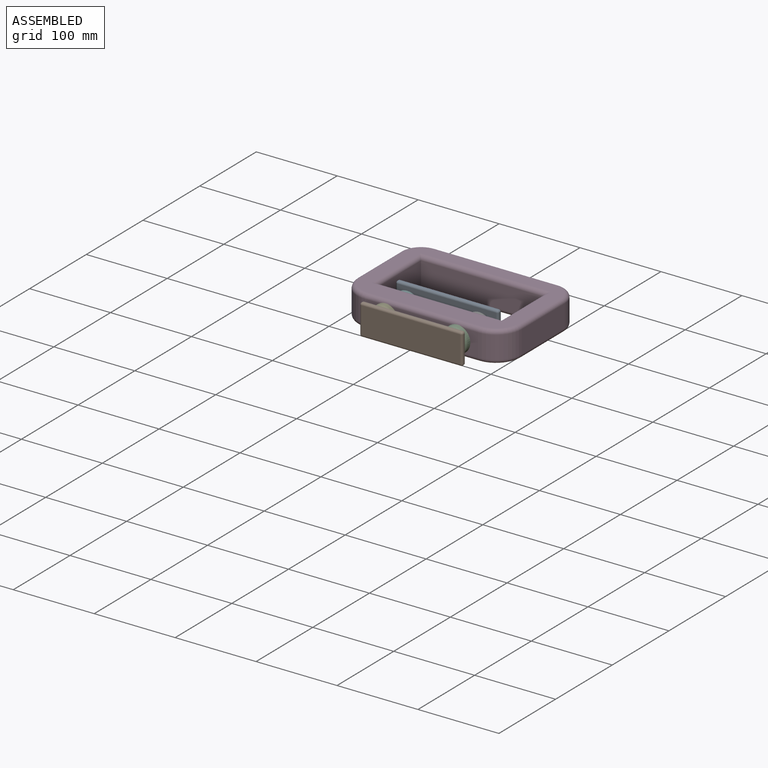
[diagram: assembled view]
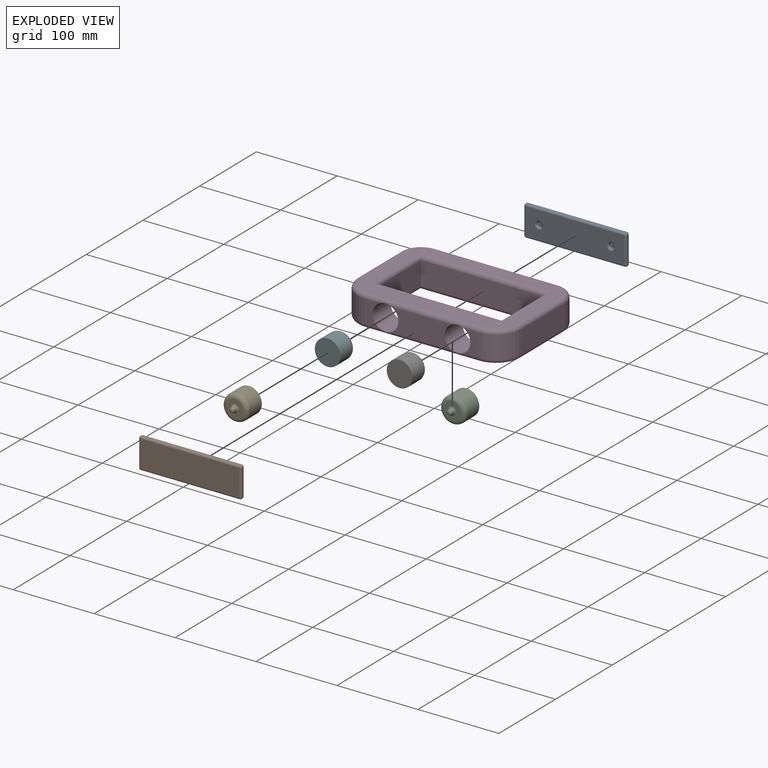
[diagram: exploded view]
GUIDED TOUR — MATED ASSEMBLY (Onshape document bc9c2df573b4881ff6e72597, AutoMate assembly bc9c2df573b4881ff6e72597_b0137a66a25a25fc5a26b31e_0d017a39933ade05e7fb4872_default)

This assembly has 7 components, labeled P0..P6 below (a component is one placed occurrence of a part; the same part can appear more than once), held together by 6 mates. A mate is a constraint between two components; its type names the relative motion it leaves free:
  FASTENED — locks the two components together rigidly (no relative motion).
Axis/direction vectors are unit vectors and 'through' points are millimeter coordinates, both in the assembly's world frame.

MATES
  1. FASTENED "Fastened 4": P5 <-> P4, direction (0.000, -1.000, 0.000) through (-46.03, -4.26, -5.03) mm
  2. FASTENED "Fastened 2": P2 <-> P3, direction (0.000, 1.000, 0.000) through (42.87, -4.26, -5.03) mm
  3. FASTENED "Fastened 6": P0 <-> P5, direction (0.000, -1.000, 0.000) through (-46.03, 27.49, -5.03) mm
  4. FASTENED "Fastened 5": P6 <-> P2, direction (0.000, -1.000, 0.000) through (42.87, -4.26, -5.03) mm
  5. FASTENED "Fastened 3": P1 <-> P2, direction (0.000, -1.000, 0.000) through (42.87, -35.27, -5.03) mm
  6. FASTENED "Fastened 1": P4 <-> P3, direction (0.000, 1.000, 0.000) through (-46.03, -4.26, -5.03) mm

ASSEMBLY ORDER
  1. P3 — the base component [order heuristic]
  2. P6 — core [order heuristic]
  3. P5 — core [order heuristic]
  4. P0 — core [order heuristic]
  5. P4 [order verified]
  6. P2 [order verified]
  7. P1 [order verified]
(P1 verified with a relaxed clearance tolerance: the source model stores slight part interference there.)
Order-tag legend:
  [order verified] — this step's position reverses a verified removal order: the component was checked to insert without passing through the ones already placed.
  [order heuristic] — the first 4 components form the assembly's core: parts whose collision-free extraction could not be verified, listed in mate-graph order.

Of the 7 components, 1 carries the full construction recipe — the FeatureScript program that regenerates the part's solid from scratch; the rest are supplied as boundary geometry only.
Each toured component is shown spotlighted twice — in the assembled view, then in the exploded view, where a leader line traces a displaced component back to its assembled socket (saturated green if recipe-attached, orange if geometry-only; every other component desaturated gray) — followed by its recipe or geometry summary and the mates that hold it.
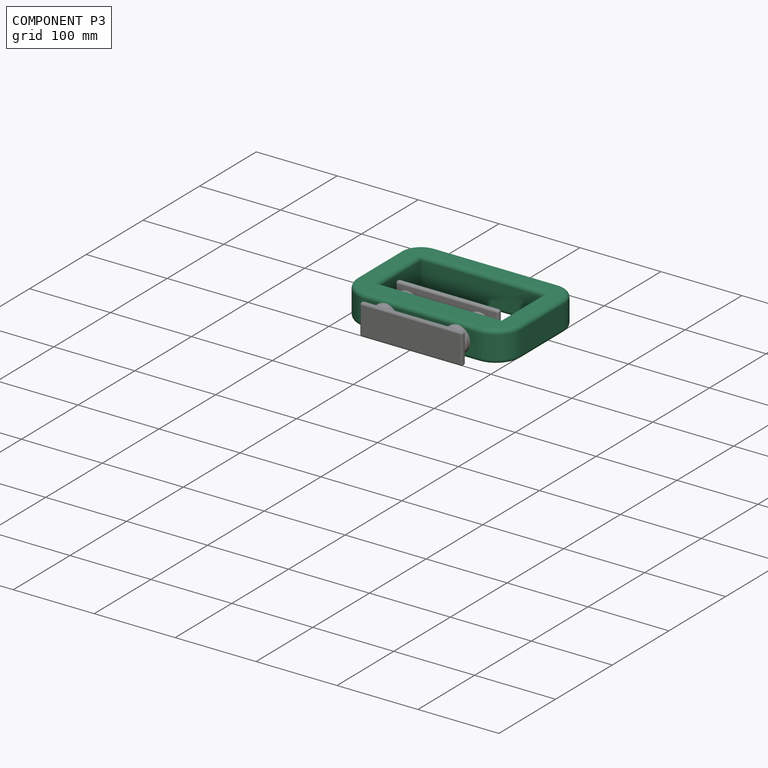
[diagram: component P3 — assembled]
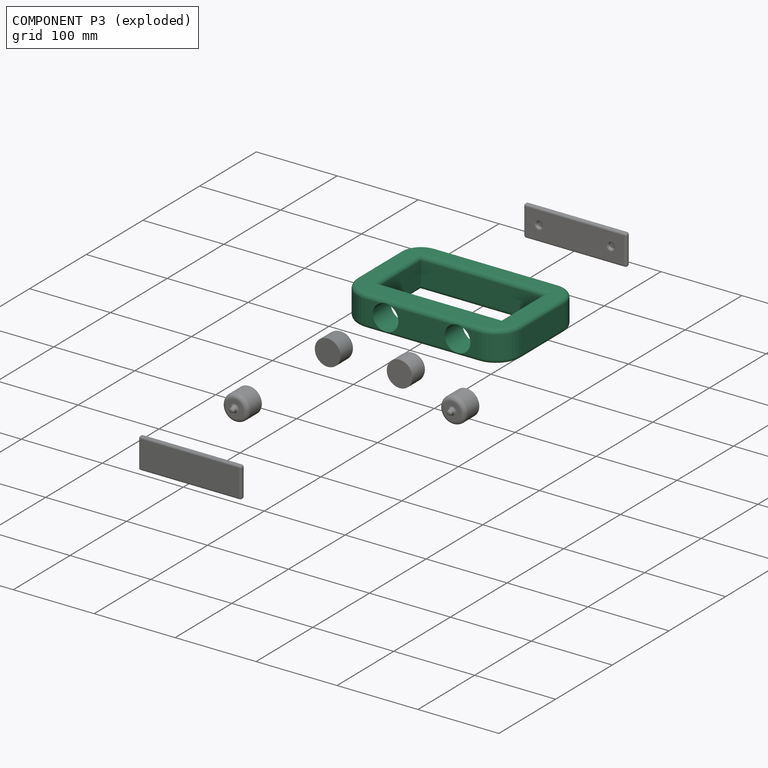
[diagram: component P3 — exploded]
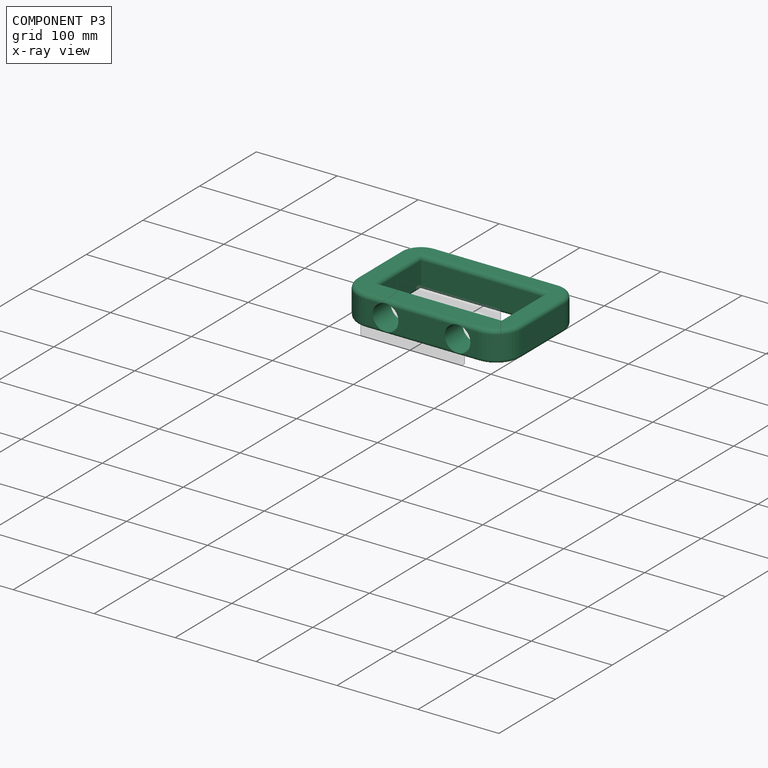
[diagram: component P3 — x-ray view]
COMPONENT P3 — recipe-attached (CADFS 00538621, mesh-verified: the recipe's output STEP matches this component's geometry to below the mesh-comparison resolution (tessellation chordal tolerance ~0.369 mm)).
Held by: FASTENED mate "Fastened 2" to P2; FASTENED mate "Fastened 1" to P4.
Construction recipe (FeatureScript — the CAD program that rebuilds this solid; sketch coordinates are in the units given by the * unit suffixes, e.g. mm):

FeatureScript 1511;
import(path : "onshape/std/geometry.fs", version : "1511.0");
import(path : "onshape/std/common.fs", version : "1511.0");
const mm = millimeter;
const VERTEX = EntityType.VERTEX;
const EDGE = EntityType.EDGE;
const FACE = EntityType.FACE;
const BODY = EntityType.BODY;
function v(x, y){return vector(x, y);}
function OD(order){return orderDisambiguation(order);}
function OSD(set){return originalSetDisambiguation(set);}
function TD(topology){return topologyDisambiguation(topology);}
function TDD(query){return trueDependencyDisambiguation(query);}
function sQuery(a, b, c) {return sketchEntityQuery(a, b, c);}

annotation { "Feature Type Name" : "Feature", "Feature Type Description" : "" }
export const myFeature = defineFeature(function(context is Context, id is Id, definition is map)
    precondition{}
    {
        {
            var Q0;
            Q0=qCreatedBy(makeId("Front.planeOp"),FACE);
            var sketch = newSketch(context, id + "F0", { "sketchPlane" : qUnion([Q0])});
            skLineSegment(sketch, "E0.bottom", {"start": v(69.85, -19.05) * mm, "end": v(-69.85, -19.05) * mm});
            skLineSegment(sketch, "E0.top", {"start": v(69.85, 19.05) * mm, "end": v(-69.85, 19.05) * mm});
            skLineSegment(sketch, "E0.left", {"start": v(69.85, -19.05) * mm, "end": v(69.85, 19.05) * mm});
            skLineSegment(sketch, "E0.right", {"start": v(-69.85, -19.05) * mm, "end": v(-69.85, 19.05) * mm});
            skPoint(sketch, "E0.middle", {"position": v(0, 0) * mm});
            skCircle(sketch, "E1", {"center": v(-44.45, 0) * mm, "radius": 15.88 * mm});
            skCircle(sketch, "E2", {"center": v(44.45, 0) * mm, "radius": 15.88 * mm});
            skLineSegment(sketch, "E3", {"start": v(-44.45, 0) * mm, "end": v(0, 0) * mm, "construction": true});
            skLineSegment(sketch, "E4", {"start": v(0, 0) * mm, "end": v(44.45, 0) * mm, "construction": true});
            skSolve(sketch);
        }
        {
            var Q0;
            Q0=makeQuery(id+"F0.imprint","IMPRINT",FACE,{"disambiguationData":[TD([[makeQuery(id+"F0.imprint","IMPRINT",EDGE,{"derivedFrom":sQuery(id+"F0.wireOp",EDGE,"E0.bottom")}),-1.0]])]});
            extrude(context, id + "F1", {"entities" : qUnion([Q0]), "endBound" : BoundingType.SYMMETRIC, "depth" : 31.75 * mm, "offsetDistance" : 25.4 * mm});
        }
        {
            var Q0;
            Q0=makeQuery(id+"F1.opExtrude","SWEPT_FACE",FACE,{"disambiguationData":[OSD([sQuery(id+"F0.wireOp",EDGE,"E0.right")])]});
            var sketch = newSketch(context, id + "F2", { "sketchPlane" : qUnion([Q0])});
            skLineSegment(sketch, "E5.bottom", {"start": v(15.88, -19.05) * mm, "end": v(-15.88, -19.05) * mm});
            skLineSegment(sketch, "E5.top", {"start": v(15.88, 19.05) * mm, "end": v(-15.88, 19.05) * mm});
            skLineSegment(sketch, "E5.left", {"start": v(15.88, -19.05) * mm, "end": v(15.88, 19.05) * mm});
            skLineSegment(sketch, "E5.right", {"start": v(-15.88, -19.05) * mm, "end": v(-15.88, 19.05) * mm});
            skPoint(sketch, "E5.middle", {"position": v(0, 0) * mm});
            skSolve(sketch);
        }
        {
            var Q0;
            Q0=makeQuery(id+"F2.imprint","IMPRINT",FACE,{"disambiguationData":[TD([[makeQuery(id+"F2.imprint","IMPRINT",EDGE,{"derivedFrom":sQuery(id+"F2.wireOp",EDGE,"E5.bottom")}),-1.0]])]});
            var Q1;
            Q1=sQuery(id+"F2.wireOp",EDGE,"E5.right");
            revolve(context, id + "F3", {"operationType" : NewBodyOperationType.ADD, "entities" : qUnion([Q0]), "axis" : qUnion([Q1]), "revolveType" : RevolveType.ONE_DIRECTION, "oppositeDirection" : true, "angle" : 90 * degree});
        }
        {
            var Q0;
            Q0=makeQuery(id+"F3.boolean.opBoolean","MERGE",FACE,{"derivedFrom":[makeQuery(id+"F1.opExtrude","CAP_FACE",FACE,{"disambiguationData":[OSD([sQuery(id+"F0.wireOp",EDGE,"E0.bottom"),sQuery(id+"F0.wireOp",EDGE,"E0.top"),sQuery(id+"F0.wireOp",EDGE,"E0.left"),sQuery(id+"F0.wireOp",EDGE,"E0.right"),sQuery(id+"F0.wireOp",EDGE,"E1"),sQuery(id+"F0.wireOp",EDGE,"E2")])],"isStart":true}),makeQuery(id+"F3.opRevolve","CAP_FACE",FACE,{"disambiguationData":[OSD([sQuery(id+"F2.wireOp",EDGE,"E5.bottom"),sQuery(id+"F2.wireOp",EDGE,"E5.top"),sQuery(id+"F2.wireOp",EDGE,"E5.left"),sQuery(id+"F2.wireOp",EDGE,"E5.right")])],"isStart":false})]});
            var sketch = newSketch(context, id + "F4", { "sketchPlane" : qUnion([Q0])});
            skLineSegment(sketch, "E6.bottom", {"start": v(101.6, 19.05) * mm, "end": v(76.2, 19.05) * mm});
            skLineSegment(sketch, "E6.top", {"start": v(101.6, -19.05) * mm, "end": v(76.2, -19.05) * mm});
            skLineSegment(sketch, "E6.left", {"start": v(101.6, 19.05) * mm, "end": v(101.6, -19.05) * mm});
            skLineSegment(sketch, "E6.right", {"start": v(76.2, 19.05) * mm, "end": v(76.2, -19.05) * mm});
            skSolve(sketch);
        }
        {
            var Q0;
            Q0=makeQuery(id+"F4.imprint","IMPRINT",FACE,{"disambiguationData":[TD([[makeQuery(id+"F4.imprint","IMPRINT",EDGE,{"derivedFrom":sQuery(id+"F4.wireOp",EDGE,"E6.bottom")}),-1.0]])]});
            extrude(context, id + "F5", {"entities" : qUnion([Q0]), "operationType" : NewBodyOperationType.ADD, "depth" : 76.2 * mm, "offsetDistance" : 25.4 * mm});
        }
        {
            var Q0;
            Q0=makeQuery(id+"F5.opExtrude","CAP_FACE",FACE,{"disambiguationData":[OSD([sQuery(id+"F4.wireOp",EDGE,"E6.bottom"),sQuery(id+"F4.wireOp",EDGE,"E6.top"),sQuery(id+"F4.wireOp",EDGE,"E6.left"),sQuery(id+"F4.wireOp",EDGE,"E6.right")])],"isStart":false});
            var Q1;
            Q1=makeQuery(id+"F5.opExtrude","CAP_EDGE",EDGE,{"disambiguationData":[OSD([sQuery(id+"F4.wireOp",EDGE,"E6.right")])],"isStart":false});
            revolve(context, id + "F6", {"operationType" : NewBodyOperationType.ADD, "entities" : qUnion([Q0]), "axis" : qUnion([Q1]), "revolveType" : RevolveType.ONE_DIRECTION, "angle" : 90 * degree});
        }
        {
            var Q0;
            {var subQ0=sQuery(id+"F4.wireOp",EDGE,"E6.right");Q0=makeQuery(id+"F6.boolean.opBoolean","MERGE",FACE,{"derivedFrom":[makeQuery(id+"F5.opExtrude","SWEPT_FACE",FACE,{"disambiguationData":[OSD([subQ0])]}),makeQuery(id+"F6.opRevolve","CAP_FACE",FACE,{"disambiguationData":[OSD([sQuery(id+"F4.wireOp",EDGE,"E6.bottom"),sQuery(id+"F4.wireOp",EDGE,"E6.top"),sQuery(id+"F4.wireOp",EDGE,"E6.left"),subQ0])],"isStart":false})]});}
            var sketch = newSketch(context, id + "F7", { "sketchPlane" : qUnion([Q0])});
            skLineSegment(sketch, "E7.bottom", {"start": v(117.47, 19.05) * mm, "end": v(92.07, 19.05) * mm});
            skLineSegment(sketch, "E7.top", {"start": v(117.47, -19.05) * mm, "end": v(92.07, -19.05) * mm});
            skLineSegment(sketch, "E7.left", {"start": v(117.47, 19.05) * mm, "end": v(117.47, -19.05) * mm});
            skLineSegment(sketch, "E7.right", {"start": v(92.07, 19.05) * mm, "end": v(92.07, -19.05) * mm});
            skSolve(sketch);
        }
        {
            var Q0;
            Q0=makeQuery(id+"F7.imprint","IMPRINT",FACE,{"disambiguationData":[TD([[makeQuery(id+"F7.imprint","IMPRINT",EDGE,{"derivedFrom":sQuery(id+"F7.wireOp",EDGE,"E7.bottom")}),1.0]])]});
            var Q1;
            Q1=qCreatedBy(makeId("Right.planeOp"),FACE);
            extrude(context, id + "F8", {"entities" : qUnion([Q0]), "operationType" : NewBodyOperationType.ADD, "endBound" : BoundingType.UP_TO_SURFACE, "depth" : 25.4 * mm, "endBoundEntityFace" : qUnion([Q1]), "offsetDistance" : 25.4 * mm});
        }
        {
            var Q0;
            Q0=makeQuery(id+"F1.opExtrude","SWEPT_FACE",FACE,{"disambiguationData":[OSD([sQuery(id+"F0.wireOp",EDGE,"E0.left")])]});
            var Q1;
            Q1=makeQuery(id+"F1.opExtrude","CAP_EDGE",EDGE,{"disambiguationData":[OSD([sQuery(id+"F0.wireOp",EDGE,"E0.left")])],"isStart":true});
            revolve(context, id + "F9", {"operationType" : NewBodyOperationType.ADD, "entities" : qUnion([Q0]), "axis" : qUnion([Q1]), "revolveType" : RevolveType.ONE_DIRECTION, "angle" : 90 * degree});
        }
        {
            var Q0;
            {var subQ0=sQuery(id+"F0.wireOp",EDGE,"E0.left");Q0=makeQuery(id+"F9.boolean.opBoolean","MERGE",FACE,{"derivedFrom":[makeQuery(id+"F3.boolean.opBoolean","MERGE",FACE,{"derivedFrom":[makeQuery(id+"F1.opExtrude","CAP_FACE",FACE,{"disambiguationData":[OSD([sQuery(id+"F0.wireOp",EDGE,"E0.bottom"),sQuery(id+"F0.wireOp",EDGE,"E0.top"),subQ0,sQuery(id+"F0.wireOp",EDGE,"E0.right"),sQuery(id+"F0.wireOp",EDGE,"E1"),sQuery(id+"F0.wireOp",EDGE,"E2")])],"isStart":true}),makeQuery(id+"F3.opRevolve","CAP_FACE",FACE,{"disambiguationData":[OSD([sQuery(id+"F2.wireOp",EDGE,"E5.bottom"),sQuery(id+"F2.wireOp",EDGE,"E5.top"),sQuery(id+"F2.wireOp",EDGE,"E5.left"),sQuery(id+"F2.wireOp",EDGE,"E5.right")])],"isStart":false})]}),makeQuery(id+"F9.opRevolve","CAP_FACE",FACE,{"disambiguationData":[OSD([subQ0])],"isStart":false})]});}
            var sketch = newSketch(context, id + "F10", { "sketchPlane" : qUnion([Q0])});
            skLineSegment(sketch, "E8.bottom", {"start": v(-101.6, 19.05) * mm, "end": v(-76.2, 19.05) * mm});
            skLineSegment(sketch, "E8.top", {"start": v(-101.6, -19.05) * mm, "end": v(-76.2, -19.05) * mm});
            skLineSegment(sketch, "E8.left", {"start": v(-101.6, 19.05) * mm, "end": v(-101.6, -19.05) * mm});
            skLineSegment(sketch, "E8.right", {"start": v(-76.2, 19.05) * mm, "end": v(-76.2, -19.05) * mm});
            skSolve(sketch);
        }
        {
            var Q0;
            Q0=makeQuery(id+"F10.imprint","IMPRINT",FACE,{"disambiguationData":[TD([[makeQuery(id+"F10.imprint","IMPRINT",EDGE,{"derivedFrom":sQuery(id+"F10.wireOp",EDGE,"E8.bottom")}),-1.0]])]});
            extrude(context, id + "F11", {"entities" : qUnion([Q0]), "operationType" : NewBodyOperationType.ADD, "depth" : 76.2 * mm, "offsetDistance" : 25.4 * mm});
        }
        {
            var Q0;
            Q0=makeQuery(id+"F11.opExtrude","CAP_FACE",FACE,{"disambiguationData":[OSD([sQuery(id+"F10.wireOp",EDGE,"E8.bottom"),sQuery(id+"F10.wireOp",EDGE,"E8.top"),sQuery(id+"F10.wireOp",EDGE,"E8.left"),sQuery(id+"F10.wireOp",EDGE,"E8.right")])],"isStart":false});
            var Q1;
            Q1=makeQuery(id+"F11.opExtrude","CAP_EDGE",EDGE,{"disambiguationData":[OSD([sQuery(id+"F10.wireOp",EDGE,"E8.right")])],"isStart":false});
            revolve(context, id + "F12", {"operationType" : NewBodyOperationType.ADD, "entities" : qUnion([Q0]), "axis" : qUnion([Q1]), "revolveType" : RevolveType.ONE_DIRECTION, "oppositeDirection" : true, "angle" : 90 * degree});
        }
        {
            var Q0;
            Q0=makeQuery(id+"F8.opExtrude","CAP_FACE",FACE,{"disambiguationData":[OSD([sQuery(id+"F7.wireOp",EDGE,"E7.bottom"),sQuery(id+"F7.wireOp",EDGE,"E7.top"),sQuery(id+"F7.wireOp",EDGE,"E7.left"),sQuery(id+"F7.wireOp",EDGE,"E7.right")])],"isStart":false});
            var Q1;
            {var subQ0=sQuery(id+"F10.wireOp",EDGE,"E8.right");Q1=makeQuery(id+"F12.boolean.opBoolean","MERGE",FACE,{"derivedFrom":[makeQuery(id+"F11.opExtrude","SWEPT_FACE",FACE,{"disambiguationData":[OSD([subQ0])]}),makeQuery(id+"F12.opRevolve","CAP_FACE",FACE,{"disambiguationData":[OSD([sQuery(id+"F10.wireOp",EDGE,"E8.bottom"),sQuery(id+"F10.wireOp",EDGE,"E8.top"),sQuery(id+"F10.wireOp",EDGE,"E8.left"),subQ0])],"isStart":false})]});}
            extrude(context, id + "F13", {"entities" : qUnion([Q0]), "operationType" : NewBodyOperationType.ADD, "endBound" : BoundingType.UP_TO_SURFACE, "depth" : 25.4 * mm, "endBoundEntityFace" : qUnion([Q1]), "offsetDistance" : 25.4 * mm});
        }
        {
            var Q0;
            {var subQ0=sQuery(id+"F7.wireOp",EDGE,"E7.bottom");var subQ1=sQuery(id+"F10.wireOp",EDGE,"E8.bottom");var subQ2=sQuery(id+"F0.wireOp",EDGE,"E0.top");var subQ3=sQuery(id+"F4.wireOp",EDGE,"E6.bottom");Q0=makeQuery(id+"F13.boolean.opBoolean","MERGE",FACE,{"derivedFrom":[makeQuery(id+"F12.boolean.opBoolean","MERGE",FACE,{"derivedFrom":[makeQuery(id+"F11.boolean.opBoolean","MERGE",FACE,{"derivedFrom":[makeQuery(id+"F9.boolean.opBoolean","MERGE",FACE,{"derivedFrom":[makeQuery(id+"F8.boolean.opBoolean","MERGE",FACE,{"derivedFrom":[makeQuery(id+"F6.boolean.opBoolean","MERGE",FACE,{"derivedFrom":[makeQuery(id+"F5.boolean.opBoolean","MERGE",FACE,{"derivedFrom":[makeQuery(id+"F3.boolean.opBoolean","MERGE",FACE,{"derivedFrom":[makeQuery(id+"F1.opExtrude","SWEPT_FACE",FACE,{"disambiguationData":[OSD([subQ2])]}),makeQuery(id+"F3.opRevolve","SWEPT_FACE",FACE,{"disambiguationData":[OSD([sQuery(id+"F2.wireOp",EDGE,"E5.top")])]})]}),makeQuery(id+"F5.opExtrude","SWEPT_FACE",FACE,{"disambiguationData":[OSD([subQ3])]})]}),makeQuery(id+"F6.opRevolve","SWEPT_FACE",FACE,{"disambiguationData":[OSD([subQ3])]})]}),makeQuery(id+"F8.opExtrude","SWEPT_FACE",FACE,{"disambiguationData":[OSD([subQ0])]})]}),makeQuery(id+"F9.opRevolve","SWEPT_FACE",FACE,{"disambiguationData":[OSD([subQ2,sQuery(id+"F0.wireOp",EDGE,"E0.left")])]})]}),makeQuery(id+"F11.opExtrude","SWEPT_FACE",FACE,{"disambiguationData":[OSD([subQ1])]})]}),makeQuery(id+"F12.opRevolve","SWEPT_FACE",FACE,{"disambiguationData":[OSD([subQ1])]})]}),makeQuery(id+"F13.opExtrude","SWEPT_FACE",FACE,{"disambiguationData":[OSD([subQ0])]})]});}
            var Q1;
            {var subQ0=sQuery(id+"F7.wireOp",EDGE,"E7.top");var subQ1=sQuery(id+"F10.wireOp",EDGE,"E8.top");var subQ2=sQuery(id+"F0.wireOp",EDGE,"E0.bottom");var subQ3=sQuery(id+"F4.wireOp",EDGE,"E6.top");Q1=makeQuery(id+"F13.boolean.opBoolean","MERGE",FACE,{"derivedFrom":[makeQuery(id+"F12.boolean.opBoolean","MERGE",FACE,{"derivedFrom":[makeQuery(id+"F11.boolean.opBoolean","MERGE",FACE,{"derivedFrom":[makeQuery(id+"F9.boolean.opBoolean","MERGE",FACE,{"derivedFrom":[makeQuery(id+"F8.boolean.opBoolean","MERGE",FACE,{"derivedFrom":[makeQuery(id+"F6.boolean.opBoolean","MERGE",FACE,{"derivedFrom":[makeQuery(id+"F5.boolean.opBoolean","MERGE",FACE,{"derivedFrom":[makeQuery(id+"F3.boolean.opBoolean","MERGE",FACE,{"derivedFrom":[makeQuery(id+"F1.opExtrude","SWEPT_FACE",FACE,{"disambiguationData":[OSD([subQ2])]}),makeQuery(id+"F3.opRevolve","SWEPT_FACE",FACE,{"disambiguationData":[OSD([sQuery(id+"F2.wireOp",EDGE,"E5.bottom")])]})]}),makeQuery(id+"F5.opExtrude","SWEPT_FACE",FACE,{"disambiguationData":[OSD([subQ3])]})]}),makeQuery(id+"F6.opRevolve","SWEPT_FACE",FACE,{"disambiguationData":[OSD([subQ3])]})]}),makeQuery(id+"F8.opExtrude","SWEPT_FACE",FACE,{"disambiguationData":[OSD([subQ0])]})]}),makeQuery(id+"F9.opRevolve","SWEPT_FACE",FACE,{"disambiguationData":[OSD([subQ2,sQuery(id+"F0.wireOp",EDGE,"E0.left")])]})]}),makeQuery(id+"F11.opExtrude","SWEPT_FACE",FACE,{"disambiguationData":[OSD([subQ1])]})]}),makeQuery(id+"F12.opRevolve","SWEPT_FACE",FACE,{"disambiguationData":[OSD([subQ1])]})]}),makeQuery(id+"F13.opExtrude","SWEPT_FACE",FACE,{"disambiguationData":[OSD([subQ0])]})]});}
            fillet(context, id + "F14", {"entities" : qUnion([Q0, Q1]), "radius" : 5.08 * mm, "tangentPropagation" : true, "allowEdgeOverflow" : false});
        }
    });
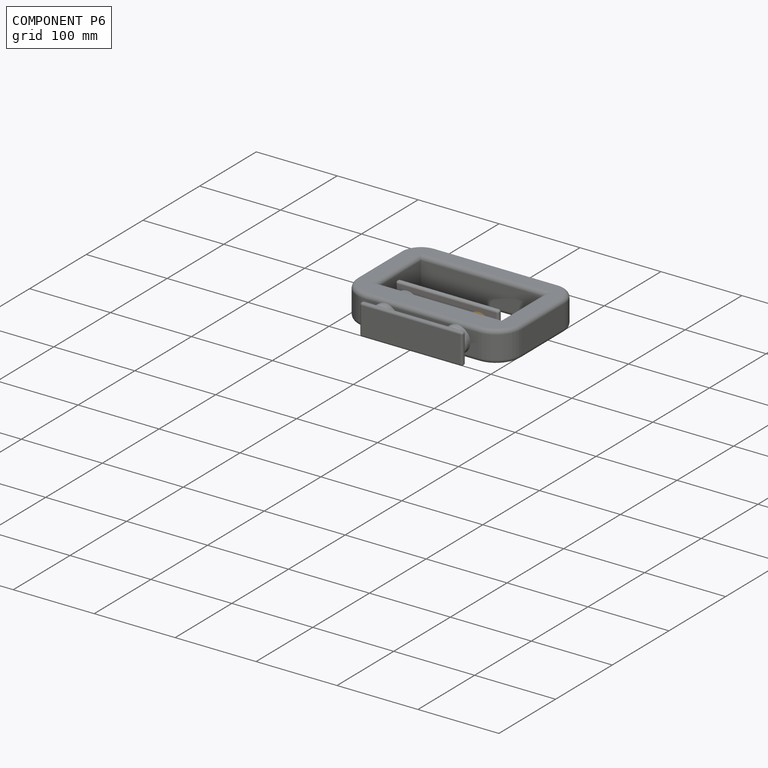
[diagram: component P6 — assembled]
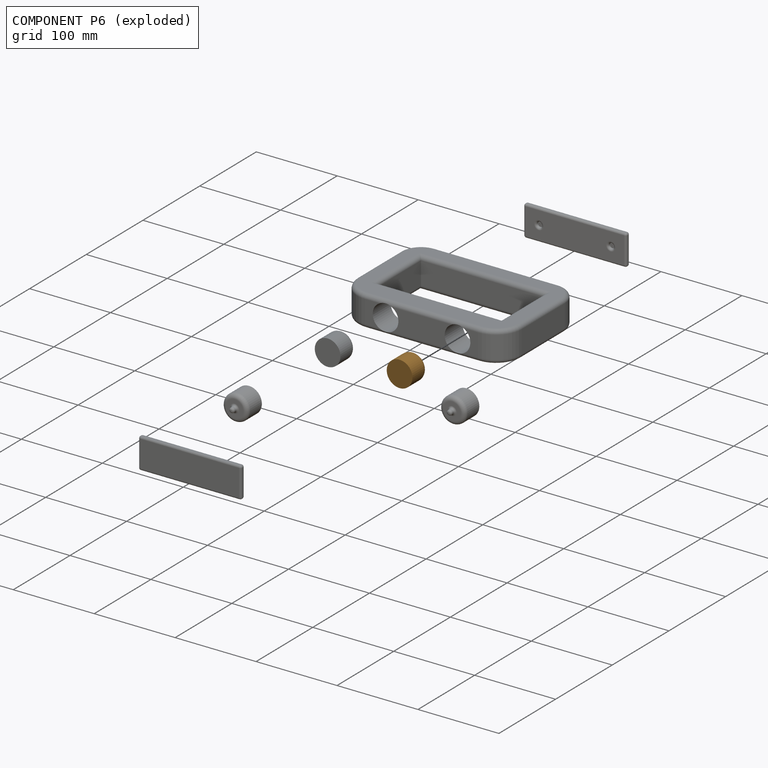
[diagram: component P6 — exploded]
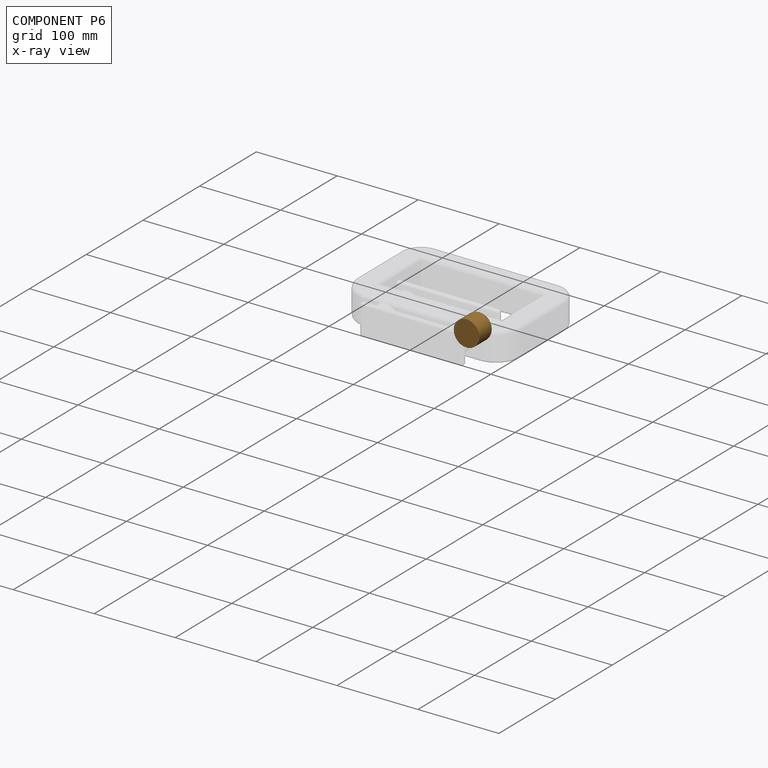
[diagram: component P6 — x-ray view]
COMPONENT P6 — geometry summary (no construction recipe available for this part):
  bounding box: 34.4 x 34.4 x 31.8 mm
  B-rep topology: 1 solid, 8 faces, 26 edges
  volume: 19808 mm^3 (53% of its bounding box)
  symmetry: revolution-symmetric about the y axis through its bounding-box center; mirror-symmetric across its x mid-plane, z mid-plane
Held by: FASTENED mate "Fastened 5" to P2.
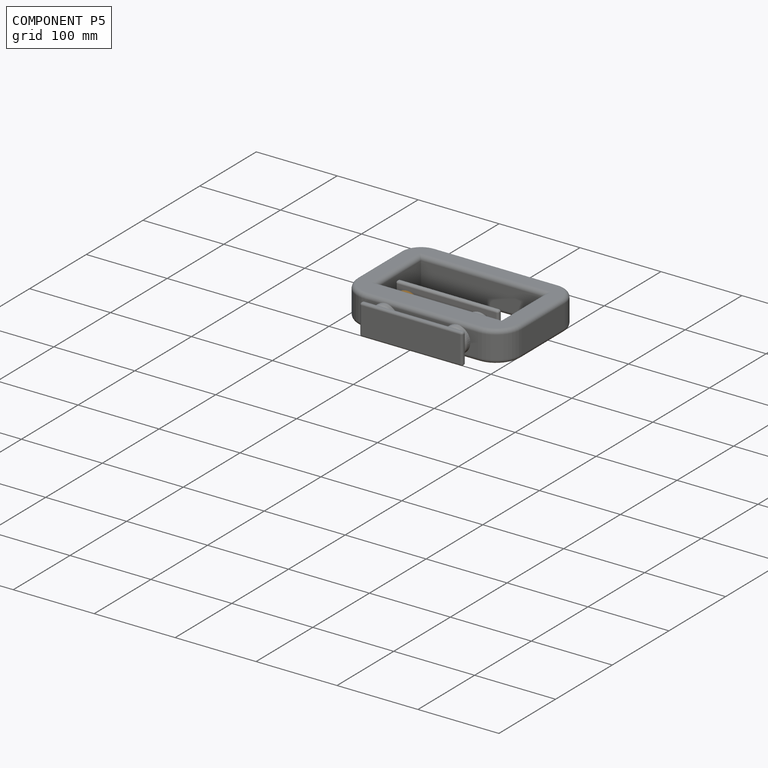
[diagram: component P5 — assembled]
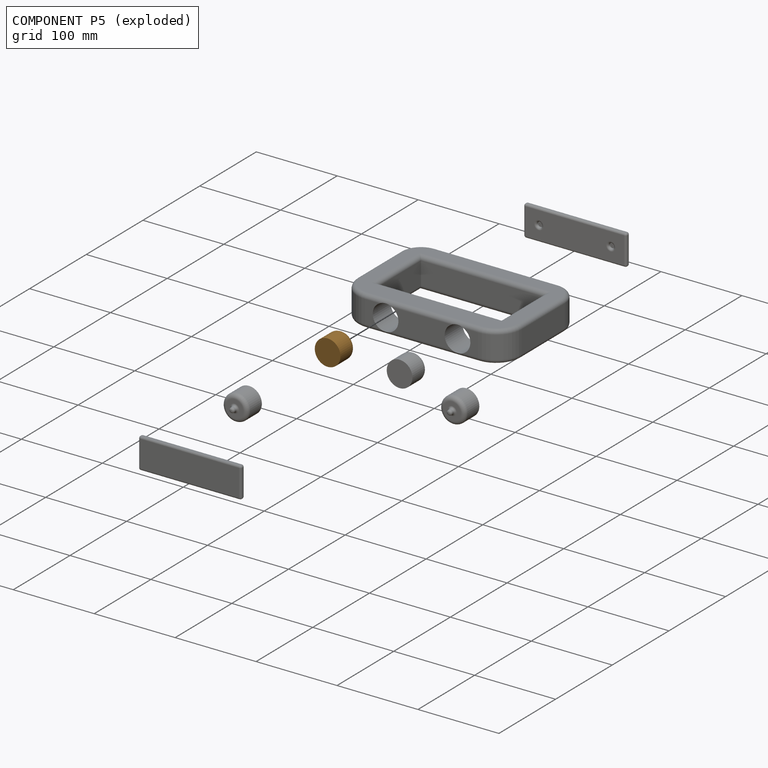
[diagram: component P5 — exploded]
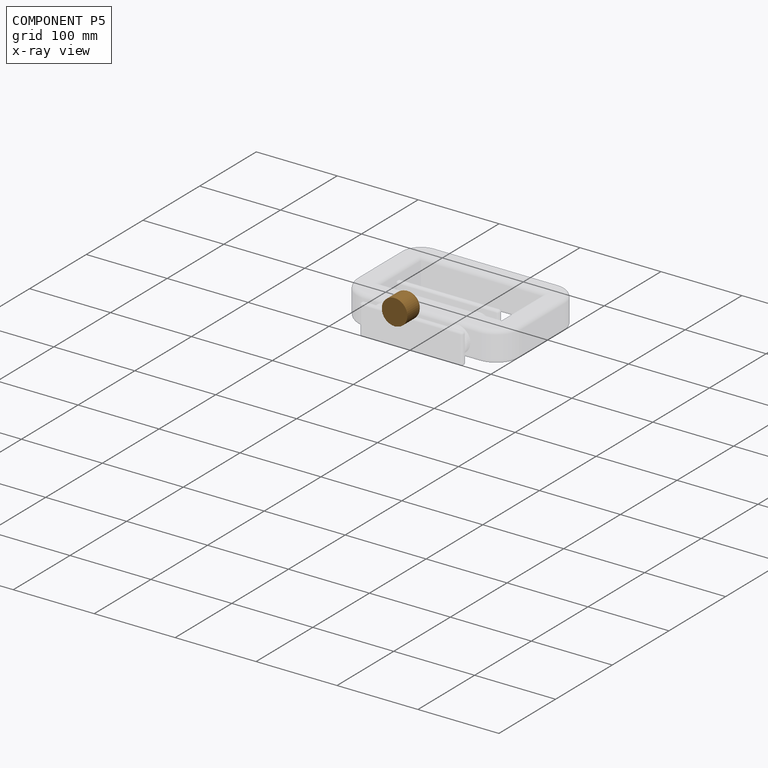
[diagram: component P5 — x-ray view]
COMPONENT P5 — geometry summary (no construction recipe available for this part):
  bounding box: 34.4 x 34.4 x 31.8 mm
  B-rep topology: 1 solid, 8 faces, 26 edges
  volume: 19808 mm^3 (53% of its bounding box)
  symmetry: revolution-symmetric about the y axis through its bounding-box center; mirror-symmetric across its x mid-plane, z mid-plane
Held by: FASTENED mate "Fastened 4" to P4; FASTENED mate "Fastened 6" to P0.
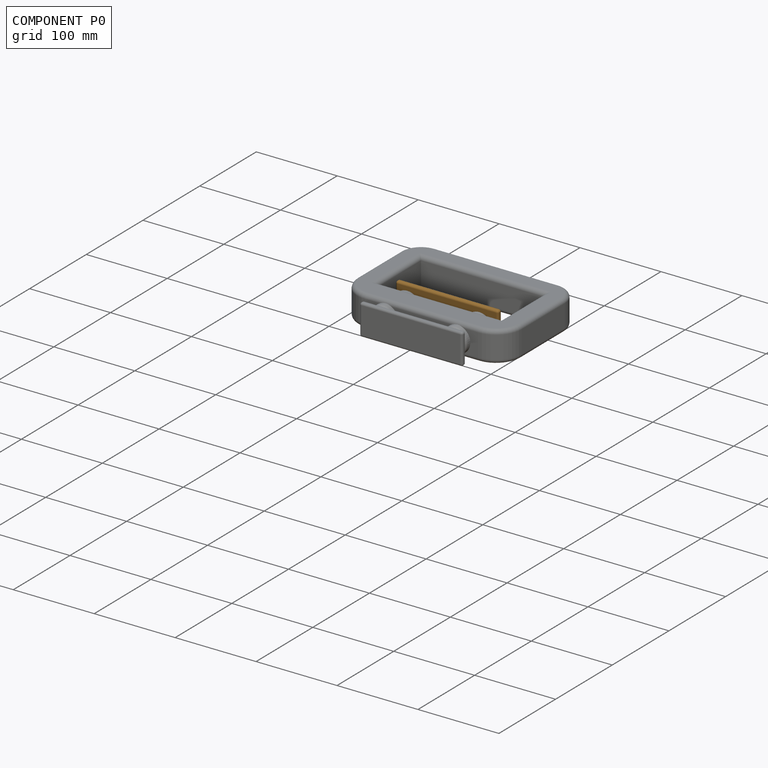
[diagram: component P0 — assembled]
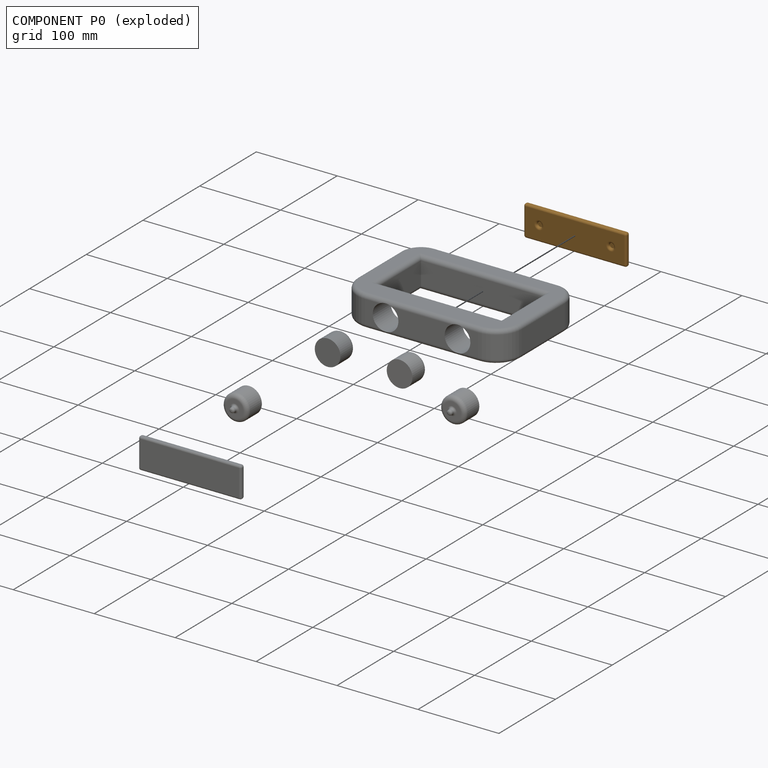
[diagram: component P0 — exploded]
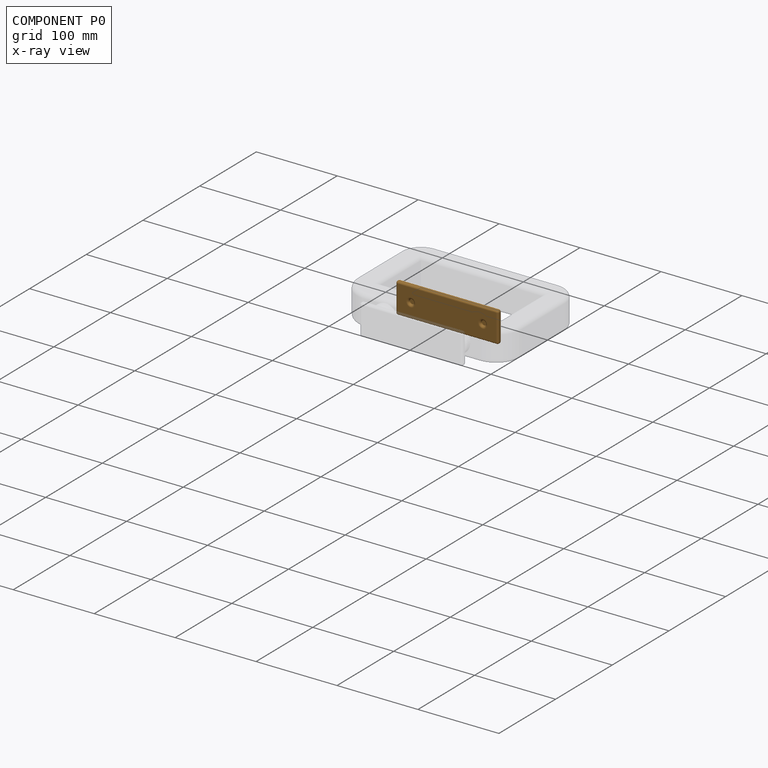
[diagram: component P0 — x-ray view]
COMPONENT P0 — geometry summary (no construction recipe available for this part):
  bounding box: 127.0 x 38.1 x 6.4 mm
  B-rep topology: 1 solid, 32 faces, 128 edges
  volume: 29532 mm^3 (96% of its bounding box)
  symmetry: 2-fold rotationally symmetric about the y axis; mirror-symmetric across its x mid-plane, z mid-plane
Held by: FASTENED mate "Fastened 6" to P5.
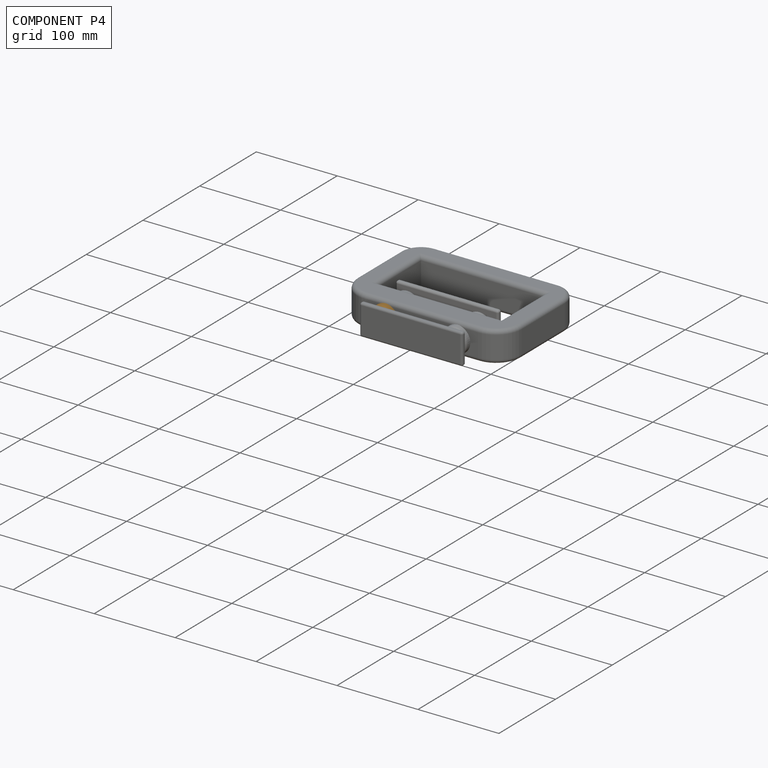
[diagram: component P4 — assembled]
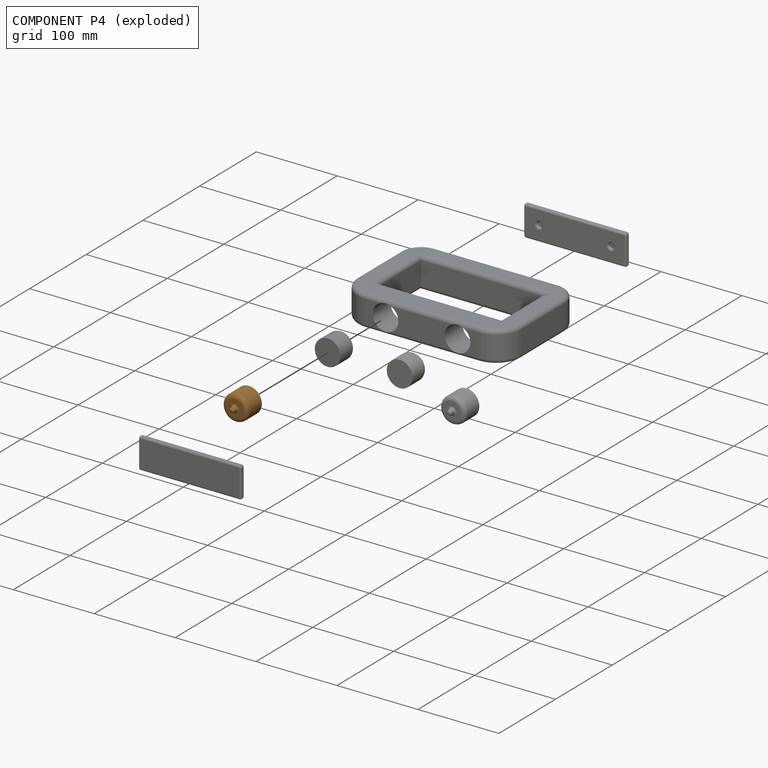
[diagram: component P4 — exploded]
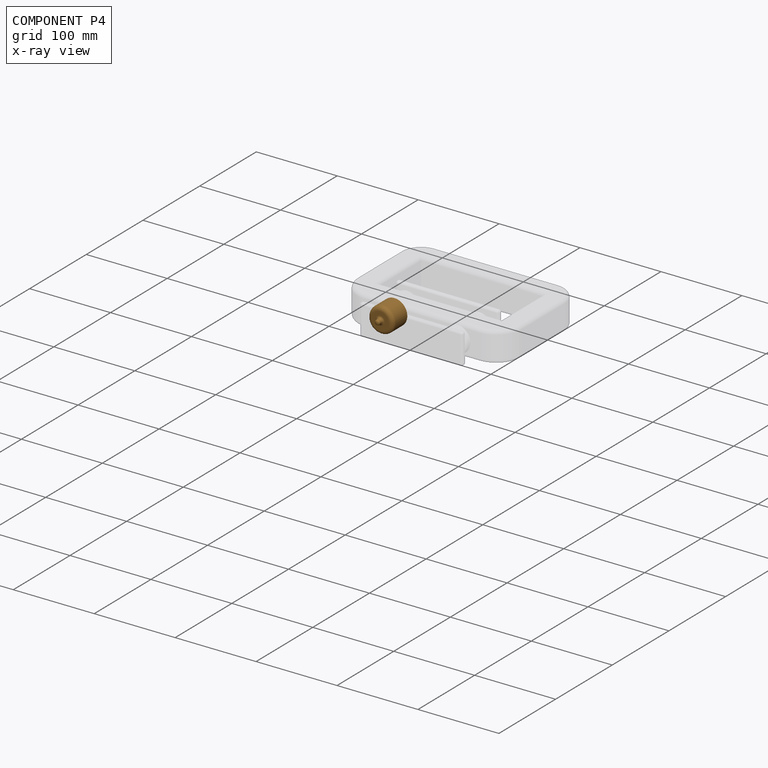
[diagram: component P4 — x-ray view]
COMPONENT P4 — geometry summary (no construction recipe available for this part):
  bounding box: 34.4 x 34.4 x 31.8 mm
  B-rep topology: 1 solid, 8 faces, 26 edges
  volume: 19808 mm^3 (53% of its bounding box)
  symmetry: revolution-symmetric about the y axis through its bounding-box center; mirror-symmetric across its x mid-plane, z mid-plane
Held by: FASTENED mate "Fastened 4" to P5; FASTENED mate "Fastened 1" to P3.
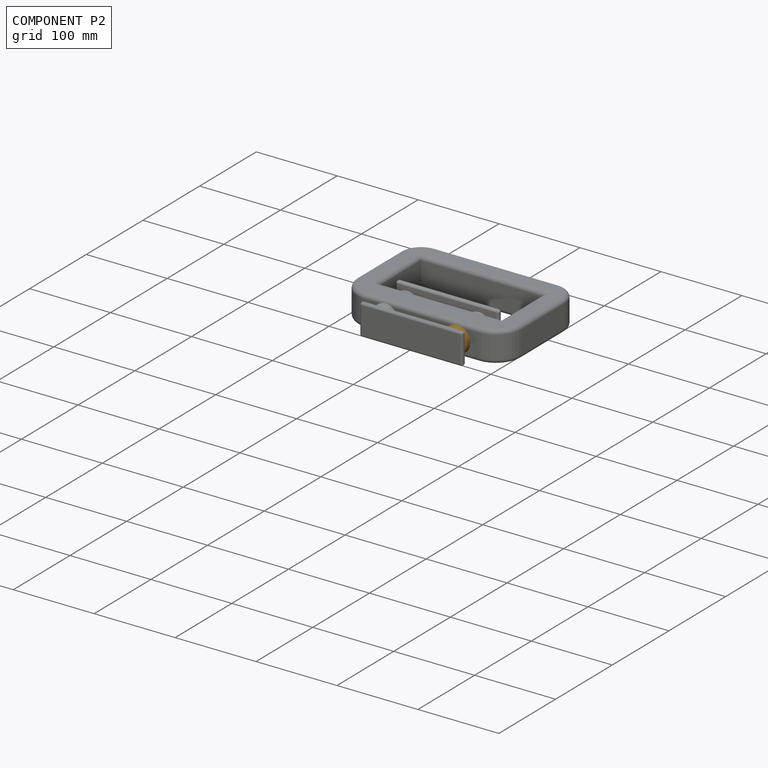
[diagram: component P2 — assembled]
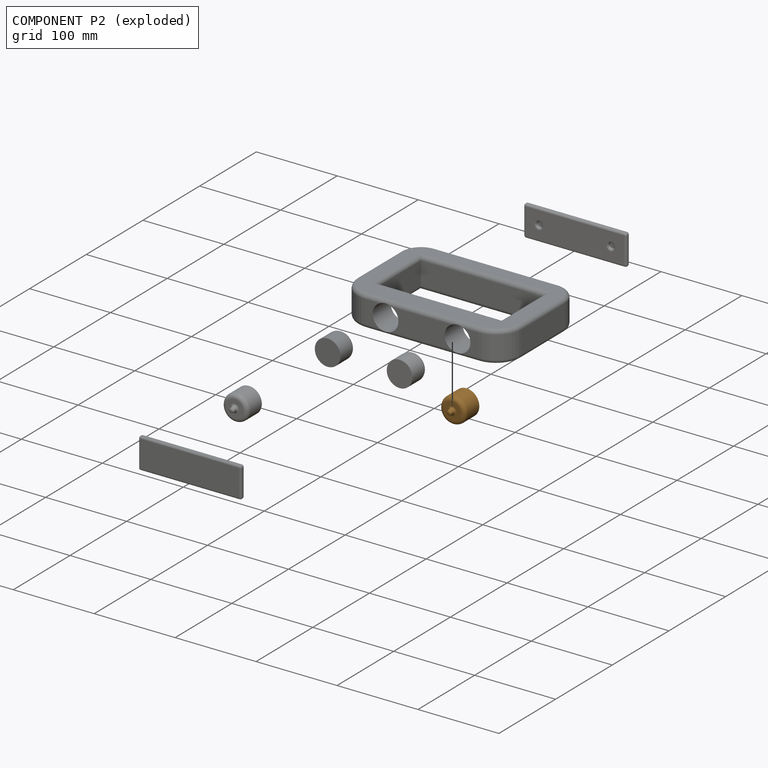
[diagram: component P2 — exploded]
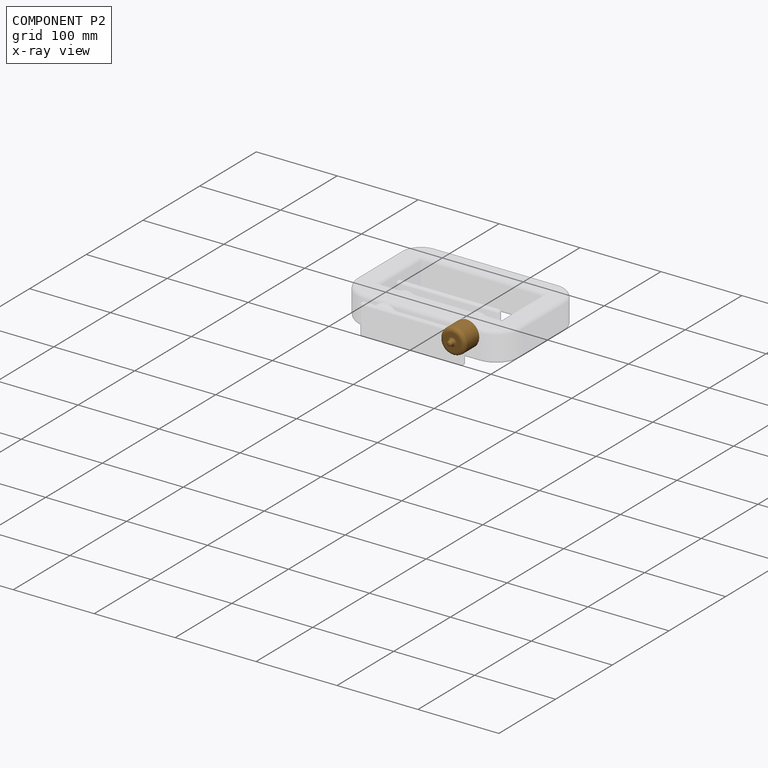
[diagram: component P2 — x-ray view]
COMPONENT P2 — geometry summary (no construction recipe available for this part):
  bounding box: 34.4 x 34.4 x 31.8 mm
  B-rep topology: 1 solid, 8 faces, 26 edges
  volume: 19808 mm^3 (53% of its bounding box)
  symmetry: revolution-symmetric about the y axis through its bounding-box center; mirror-symmetric across its x mid-plane, z mid-plane
Held by: FASTENED mate "Fastened 2" to P3; FASTENED mate "Fastened 5" to P6; FASTENED mate "Fastened 3" to P1.
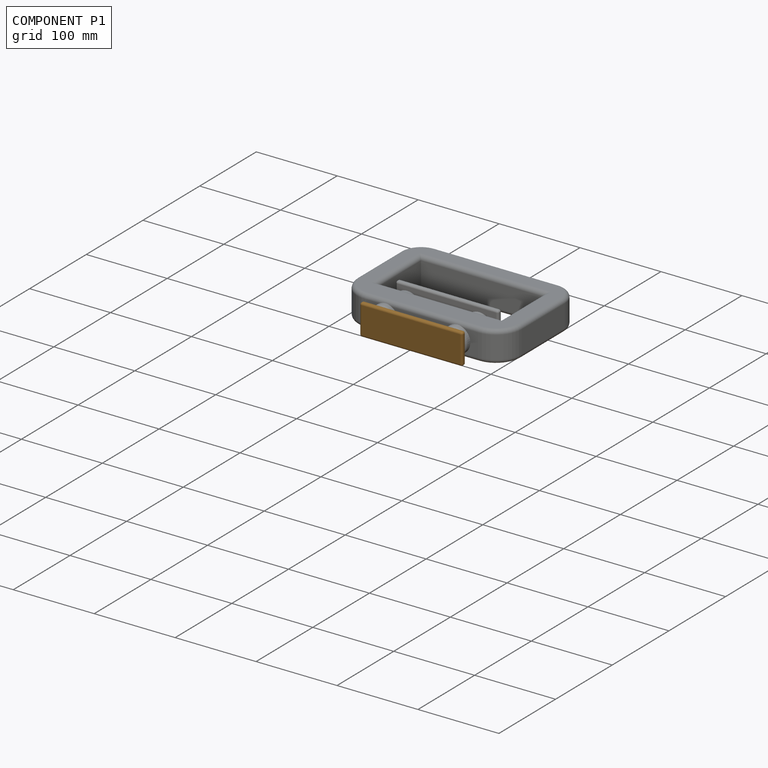
[diagram: component P1 — assembled]
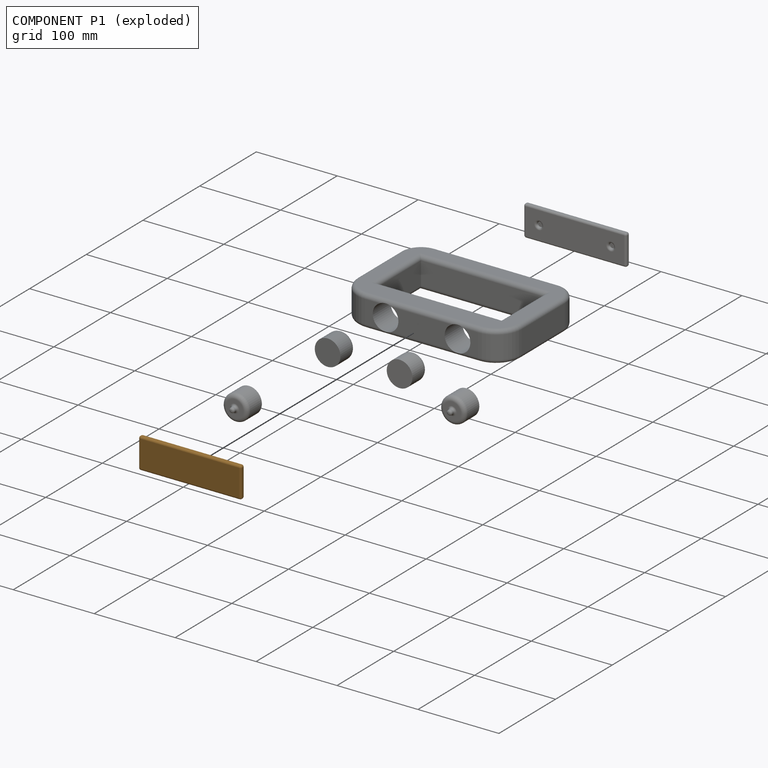
[diagram: component P1 — exploded]
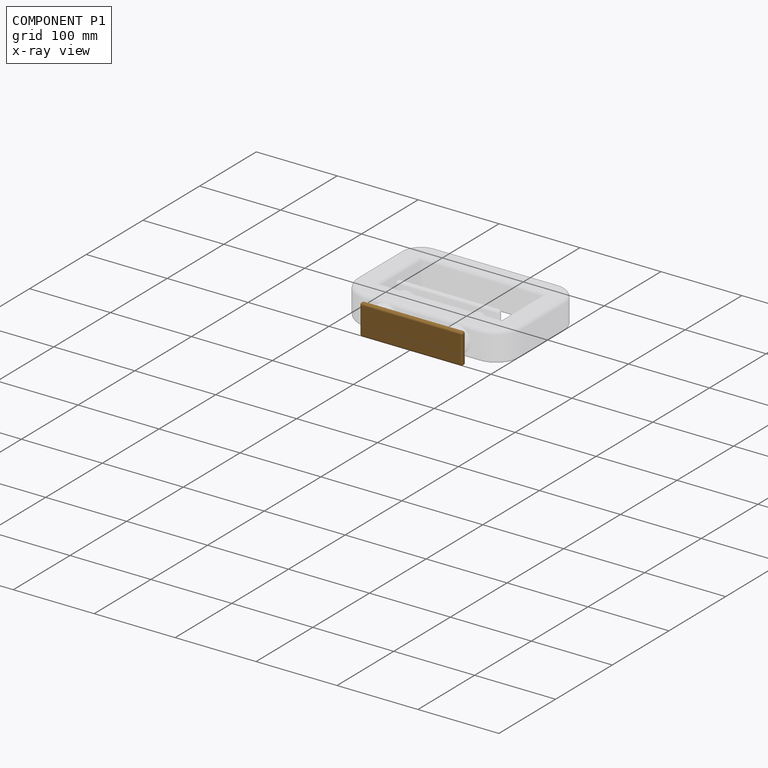
[diagram: component P1 — x-ray view]
COMPONENT P1 — geometry summary (no construction recipe available for this part):
  bounding box: 127.0 x 38.1 x 6.4 mm
  B-rep topology: 1 solid, 32 faces, 128 edges
  volume: 29532 mm^3 (96% of its bounding box)
  symmetry: 2-fold rotationally symmetric about the y axis; mirror-symmetric across its x mid-plane, z mid-plane
Held by: FASTENED mate "Fastened 3" to P2.
PROVENANCE & LICENSES
Assembly (occurrences, transforms, mates, per-part STEP geometry): AutoMate dataset, Zenodo record 7776208, CC0.
Construction recipes: CADFS (HuggingFace VladPyatov/CADFS, CC-BY-4.0, layered over the ABC dataset), FeatureScript reconstruction programs keyed by ABC model id.
Join: ABC meta listings map ABC model id -> Onshape documentId; within a shared document, parts are matched by geometric signature (bounding-box dims + volume at 0.1% relative tolerance, exact B-rep face/solid counts).
Verification: 1 of this assembly's 7 components carries a recipe attachment, and every attachment is mesh-verified: the CADFS STEP and the AutoMate member STEP were compared as meshes in their shared local frame (symmetric sampled-point-to-mesh distance); worst across the 1 attachment: below the mesh-comparison resolution (tessellation chordal tolerance ~0.369 mm) on a 246 mm part.
Renders: orthographic iso camera (az 35 / el 25); the floor grid conveys scale (grid pitch printed in each image; no ruler). In the exploded view each component is displaced by its stored offset vector: the offsets alone carry the explosion direction (mate normal/axis signs are not orientation cues and do not encode it), and separation distances are assigned per mate-chain, not proportionally to assembly-order depth.
